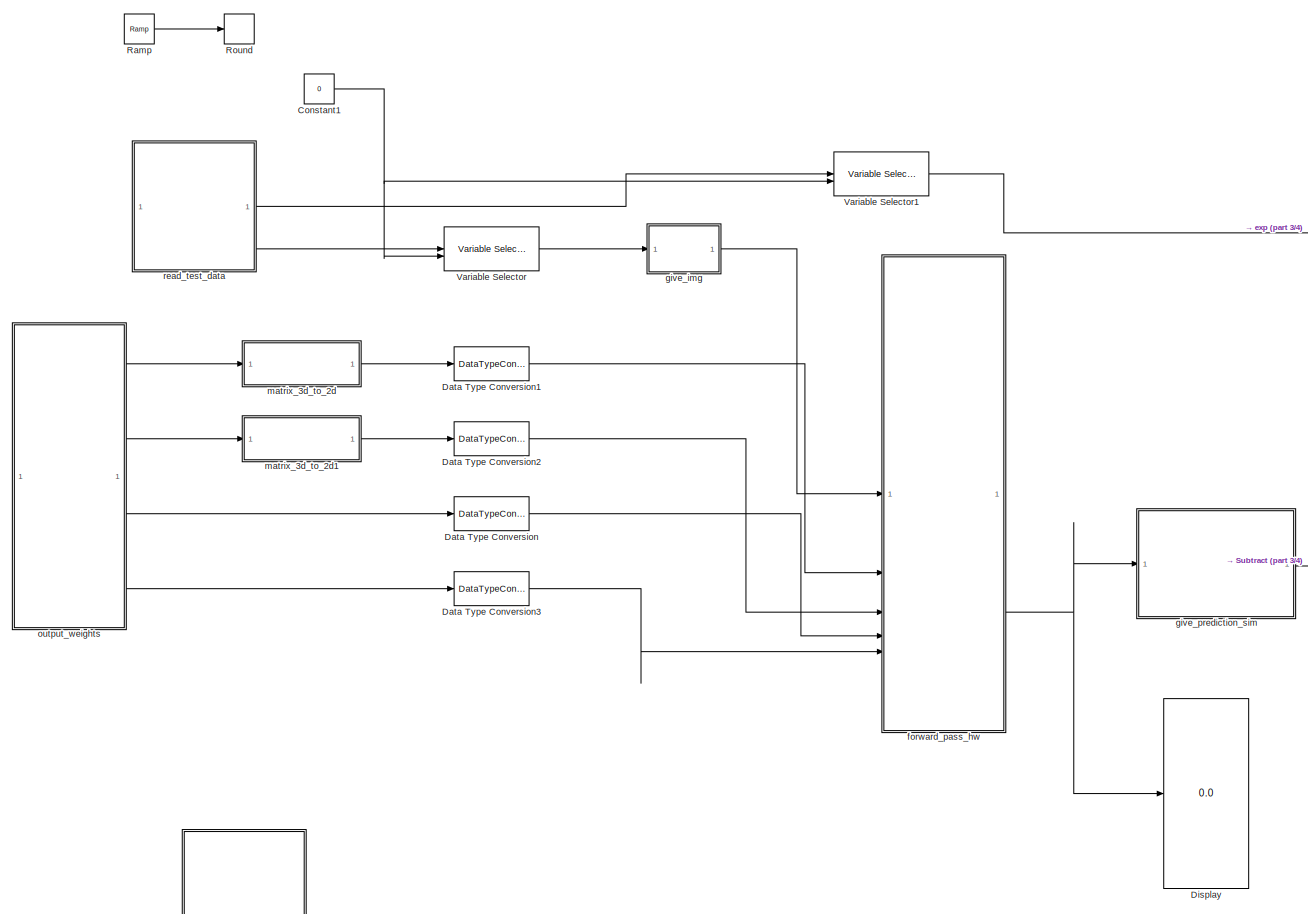
[diagram: root canvas - part 1/4, full width, middle band]
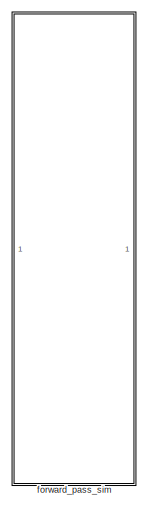
[diagram: root canvas - part 2/4, middle left region]
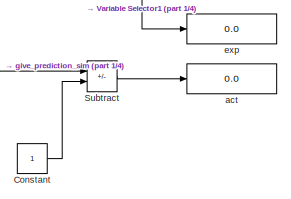
[diagram: root canvas - part 3/4, middle right region]
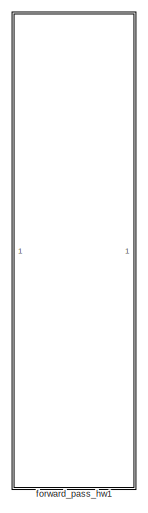
[diagram: root canvas - part 4/4, bottom left region]
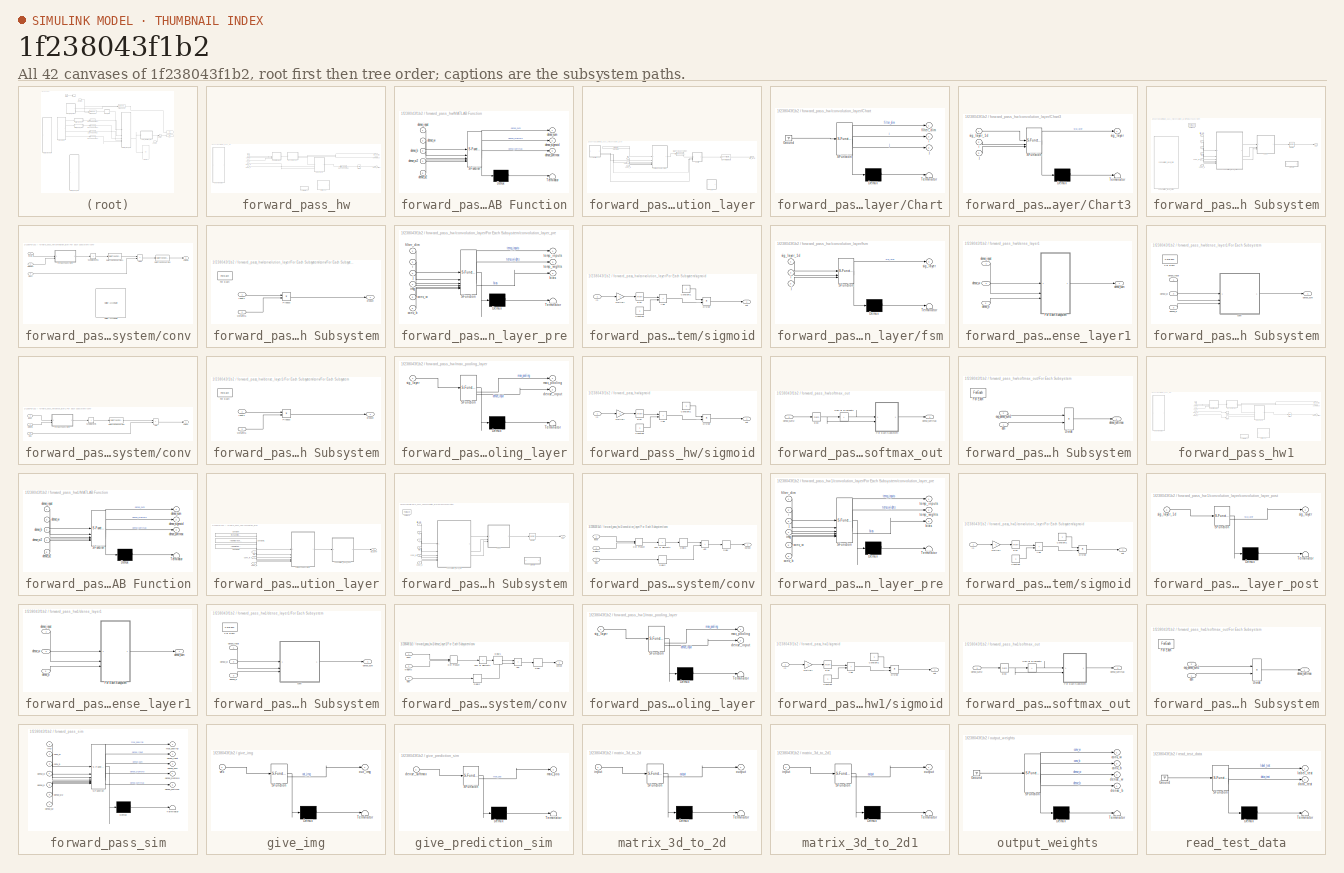
[diagram: thumbnail index - all 42 canvases of the model, root first then tree order]
MODEL slx_1f238043f1b2
KIND model
CONFIG AbsTol = auto
CONFIG EnableMultiTasking = off
CONFIG FixedStep = 0.001
CONFIG MaxStep = auto
CONFIG MinStep = auto
CONFIG RelTol = 1e-3
CONFIG SampleTimeConstraint = Unconstrained
CONFIG SolverName = FixedStepDiscrete
CONFIG StartTime = 0.0
CONFIG StopTime = 1
BLOCK [Constant] Constant
  OutDataTypeStr = single
BLOCK [Constant] Constant1
  Value = 0
BLOCK [DataTypeConversion] Data Type Conversion
  OutDataTypeStr = fixdt(1,32,8)
  RndMeth = Floor
  SaturateOnIntegerOverflow = off
BLOCK [DataTypeConversion] Data Type Conversion1
  OutDataTypeStr = fixdt(1,32,8)
  RndMeth = Floor
  SaturateOnIntegerOverflow = off
BLOCK [DataTypeConversion] Data Type Conversion2
  OutDataTypeStr = fixdt(1,32,8)
  RndMeth = Floor
  SaturateOnIntegerOverflow = off
BLOCK [DataTypeConversion] Data Type Conversion3
  OutDataTypeStr = fixdt(1,32,8)
  RndMeth = Floor
  SaturateOnIntegerOverflow = off
BLOCK [Display] Display
BLOCK [Reference] Ramp  REF=simulink/Sources/Ramp
  SourceBlock = simulink/Sources/Ramp
  SourceType = Ramp
BLOCK [Rounding] Round
  Operator = round
BLOCK [Sum] Subtract
  IconShape = rectangular
  Inputs = +-
BLOCK [Reference] Variable Selector  REF=dspindex/Variable
Selector
  SourceBlock = dspindex/Variable\nSelector
  SourceType = Variable Selector
BLOCK [Reference] Variable Selector1  REF=dspindex/Variable
Selector
  SourceBlock = dspindex/Variable\nSelector
  SourceType = Variable Selector
BLOCK [Display] act
  Decimation = 1
BLOCK [Display] exp
  Decimation = 1
BLOCK [SubSystem] forward_pass_hw
BLOCK [DataTypeConversion] forward_pass_hw/Data Type Conversion
  OutDataTypeStr = single
  RndMeth = Floor
  SaturateOnIntegerOverflow = off
BLOCK [SubSystem] forward_pass_hw/MATLAB Function
  Commented = on
  ErrorFcn = Stateflow.Translate.translate
  LibrarySourceBlock = simulink/User-Defined\nFunctions/MATLAB Function
  PermitHierarchicalResolution = ExplicitOnly
  SFBlockType = MATLAB Function
  TreatAsAtomicUnit = on
BLOCK [Demux] forward_pass_hw/MATLAB Function/ Demux 
  Outputs = 1
BLOCK [S-Function] forward_pass_hw/MATLAB Function/ SFunction 
  EnableBusSupport = on
  FunctionName = sf_sfun
  PortCounts = [5 4]
  SFcnIsStateOwnerBlock = off
  SFunctionDeploymentMode = off
  Tag = Stateflow S-Function 7
BLOCK [Terminator] forward_pass_hw/MATLAB Function/ Terminator 
BLOCK [Inport] forward_pass_hw/MATLAB Function/dense_b
  Port = 3
BLOCK [Inport] forward_pass_hw/MATLAB Function/dense_b2
  Port = 5
BLOCK [Inport] forward_pass_hw/MATLAB Function/dense_input
BLOCK [Outport] forward_pass_hw/MATLAB Function/dense_sigmoid
  Port = 2
BLOCK [Outport] forward_pass_hw/MATLAB Function/dense_softmax
  Port = 3
BLOCK [Outport] forward_pass_hw/MATLAB Function/dense_sum
BLOCK [Inport] forward_pass_hw/MATLAB Function/dense_w
  Port = 2
BLOCK [Inport] forward_pass_hw/MATLAB Function/dense_w2
  Port = 4
BLOCK [Inport] forward_pass_hw/conv_b
  Port = 3
BLOCK [Inport] forward_pass_hw/conv_w
  Port = 2
BLOCK [SubSystem] forward_pass_hw/convolution_layer
BLOCK [SubSystem] forward_pass_hw/convolution_layer/Chart
  ErrorFcn = Stateflow.Translate.translate
  PermitHierarchicalResolution = ExplicitOnly
  SFBlockType = Chart
  TreatAsAtomicUnit = on
BLOCK [Demux] forward_pass_hw/convolution_layer/Chart/ Demux 
  Outputs = 1
BLOCK [Ground] forward_pass_hw/convolution_layer/Chart/ Ground 
BLOCK [S-Function] forward_pass_hw/convolution_layer/Chart/ SFunction 
  EnableBusSupport = on
  FunctionName = sf_sfun
  PortCounts = [1 4]
  SFcnIsStateOwnerBlock = off
  SFunctionDeploymentMode = off
  Tag = Stateflow S-Function 12
BLOCK [Terminator] forward_pass_hw/convolution_layer/Chart/ Terminator 
BLOCK [Outport] forward_pass_hw/convolution_layer/Chart/filter_dim
BLOCK [Outport] forward_pass_hw/convolution_layer/Chart/i
  Port = 2
BLOCK [Outport] forward_pass_hw/convolution_layer/Chart/j
  Port = 3
BLOCK [SubSystem] forward_pass_hw/convolution_layer/Chart3
  ErrorFcn = Stateflow.Translate.translate
  PermitHierarchicalResolution = ExplicitOnly
  SFBlockType = Chart
  TreatAsAtomicUnit = on
BLOCK [Demux] forward_pass_hw/convolution_layer/Chart3/ Demux 
  Outputs = 1
BLOCK [S-Function] forward_pass_hw/convolution_layer/Chart3/ SFunction 
  EnableBusSupport = on
  FunctionName = sf_sfun
  PortCounts = [3 2]
  SFcnIsStateOwnerBlock = off
  SFunctionDeploymentMode = off
  Tag = Stateflow S-Function 16
BLOCK [Terminator] forward_pass_hw/convolution_layer/Chart3/ Terminator 
BLOCK [Inport] forward_pass_hw/convolution_layer/Chart3/i
  Port = 2
BLOCK [Inport] forward_pass_hw/convolution_layer/Chart3/j
  Port = 3
BLOCK [Outport] forward_pass_hw/convolution_layer/Chart3/sig_layer
BLOCK [Inport] forward_pass_hw/convolution_layer/Chart3/sig_layer_1d
BLOCK [Constant] forward_pass_hw/convolution_layer/Constant
  SampleTime = -1
  Value = uint16([1:5])
BLOCK [Reference] forward_pass_hw/convolution_layer/Convert 1-D to 2-D  REF=dspsigattribs/Convert 1-D to 2-D
  LibrarySourceBlock = dsphdlsupportsigmgmt/Convert 1-D to 2-D
  SourceBlock = dspsigattribs/Convert 1-D to 2-D
  SourceType = Convert 1-D to 2-D
BLOCK [DataTypeConversion] forward_pass_hw/convolution_layer/Data Type Conversion
  OutDataTypeStr = fixdt(1,32,8)
  RndMeth = Floor
  SaturateOnIntegerOverflow = off
BLOCK [SubSystem] forward_pass_hw/convolution_layer/For Each Subsystem
  TreatAsAtomicUnit = on
BLOCK [ForEach] forward_pass_hw/convolution_layer/For Each Subsystem/For Each
  DisableCoverage = on
BLOCK [SubSystem] forward_pass_hw/convolution_layer/For Each Subsystem/conv
BLOCK [Sum] forward_pass_hw/convolution_layer/For Each Subsystem/conv/Add1
  IconShape = rectangular
BLOCK [DataTypeConversion] forward_pass_hw/convolution_layer/For Each Subsystem/conv/Data Type Conversion
  OutDataTypeStr = single
  RndMeth = Floor
  SaturateOnIntegerOverflow = off
BLOCK [DataTypeConversion] forward_pass_hw/convolution_layer/For Each Subsystem/conv/Data Type Conversion1
  OutDataTypeStr = fixdt(1,32,8)
  RndMeth = Floor
  SaturateOnIntegerOverflow = off
BLOCK [SubSystem] forward_pass_hw/convolution_layer/For Each Subsystem/conv/For Each Subsystem
  TreatAsAtomicUnit = on
BLOCK [ForEach] forward_pass_hw/convolution_layer/For Each Subsystem/conv/For Each Subsystem/For Each
  DisableCoverage = on
BLOCK [Product] forward_pass_hw/convolution_layer/For Each Subsystem/conv/For Each Subsystem/Product
BLOCK [Inport] forward_pass_hw/convolution_layer/For Each Subsystem/conv/For Each Subsystem/input1
  Partition = on
  PartitionDimension = 2
  PartitionOffset = 0
  PartitionWidth = 1
BLOCK [Outport] forward_pass_hw/convolution_layer/For Each Subsystem/conv/For Each Subsystem/product
  ConcatenationDimension = 1
BLOCK [Inport] forward_pass_hw/convolution_layer/For Each Subsystem/conv/For Each Subsystem/weights1
  Partition = on
  PartitionDimension = 2
  PartitionOffset = 0
  PartitionWidth = 1
  Port = 2
BLOCK [Reference] forward_pass_hw/convolution_layer/For Each Subsystem/conv/Multiply-Accumulate  REF=hdlsllib/HDL Operations/Multiply-Accumulate
  Commented = on
  SourceBlock = hdlsllib/HDL Operations/Multiply-Accumulate
  SourceType = Multiply-Accumulate
BLOCK [Sum] forward_pass_hw/convolution_layer/For Each Subsystem/conv/Sum of Elements1
  IconShape = rectangular
  Inputs = +
BLOCK [Inport] forward_pass_hw/convolution_layer/For Each Subsystem/conv/bias1
  Port = 3
BLOCK [Inport] forward_pass_hw/convolution_layer/For Each Subsystem/conv/input1
BLOCK [Outport] forward_pass_hw/convolution_layer/For Each Subsystem/conv/output1
BLOCK [Inport] forward_pass_hw/convolution_layer/For Each Subsystem/conv/weights1
  Port = 2
BLOCK [Inport] forward_pass_hw/convolution_layer/For Each Subsystem/conv_b
  Port = 6
BLOCK [Inport] forward_pass_hw/convolution_layer/For Each Subsystem/conv_w
  Port = 5
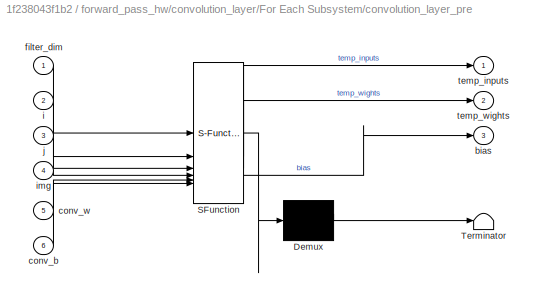
BLOCK [SubSystem] forward_pass_hw/convolution_layer/For Each Subsystem/convolution_layer_pre
  ErrorFcn = Stateflow.Translate.translate
  LibrarySourceBlock = simulink/User-Defined\nFunctions/MATLAB Function
  PermitHierarchicalResolution = ExplicitOnly
  SFBlockType = MATLAB Function
  TreatAsAtomicUnit = on
BLOCK [Demux] forward_pass_hw/convolution_layer/For Each Subsystem/convolution_layer_pre/ Demux 
  Outputs = 1
BLOCK [S-Function] forward_pass_hw/convolution_layer/For Each Subsystem/convolution_layer_pre/ SFunction 
  EnableBusSupport = on
  FunctionName = sf_sfun
  PortCounts = [6 4]
  SFcnIsStateOwnerBlock = off
  SFunctionDeploymentMode = off
  Tag = Stateflow S-Function 4
BLOCK [Terminator] forward_pass_hw/convolution_layer/For Each Subsystem/convolution_layer_pre/ Terminator 
BLOCK [Outport] forward_pass_hw/convolution_layer/For Each Subsystem/convolution_layer_pre/bias
  Port = 3
BLOCK [Inport] forward_pass_hw/convolution_layer/For Each Subsystem/convolution_layer_pre/conv_b
  Port = 6
BLOCK [Inport] forward_pass_hw/convolution_layer/For Each Subsystem/convolution_layer_pre/conv_w
  Port = 5
BLOCK [Inport] forward_pass_hw/convolution_layer/For Each Subsystem/convolution_layer_pre/filter_dim
BLOCK [Inport] forward_pass_hw/convolution_layer/For Each Subsystem/convolution_layer_pre/i
  Port = 2
BLOCK [Inport] forward_pass_hw/convolution_layer/For Each Subsystem/convolution_layer_pre/img
  Port = 4
BLOCK [Inport] forward_pass_hw/convolution_layer/For Each Subsystem/convolution_layer_pre/j
  Port = 3
BLOCK [Outport] forward_pass_hw/convolution_layer/For Each Subsystem/convolution_layer_pre/temp_inputs
BLOCK [Outport] forward_pass_hw/convolution_layer/For Each Subsystem/convolution_layer_pre/temp_wights
  Port = 2
BLOCK [Reference] forward_pass_hw/convolution_layer/For Each Subsystem/convolution_layer_pre1  REF=my_support_func/convolution_layer_pre
  Commented = on
  SourceBlock = my_support_func/convolution_layer_pre
  SourceType = CCaller
BLOCK [Inport] forward_pass_hw/convolution_layer/For Each Subsystem/filter_dim
  Partition = on
  PartitionDimension = 1
  PartitionOffset = 0
  PartitionWidth = 1
BLOCK [Inport] forward_pass_hw/convolution_layer/For Each Subsystem/i
  Port = 2
BLOCK [Inport] forward_pass_hw/convolution_layer/For Each Subsystem/img
  Port = 4
BLOCK [Inport] forward_pass_hw/convolution_layer/For Each Subsystem/j
  Port = 3
BLOCK [Reference] forward_pass_hw/convolution_layer/For Each Subsystem/logsig  REF=my_neural/Transfer Functions/logsig  (lib defined in slx_fb5f0e11bd5f)
  SourceBlock = my_neural/Transfer Functions/logsig
  SourceType = LOGSIG
BLOCK [Outport] forward_pass_hw/convolution_layer/For Each Subsystem/out
  ConcatenationDimension = 1
BLOCK [SubSystem] forward_pass_hw/convolution_layer/For Each Subsystem/sigmoid
  Commented = on
BLOCK [Sum] forward_pass_hw/convolution_layer/For Each Subsystem/sigmoid/Add
  IconShape = rectangular
BLOCK [Constant] forward_pass_hw/convolution_layer/For Each Subsystem/sigmoid/Constant
BLOCK [Constant] forward_pass_hw/convolution_layer/For Each Subsystem/sigmoid/Constant1
BLOCK [Product] forward_pass_hw/convolution_layer/For Each Subsystem/sigmoid/Divide
  Inputs = */
BLOCK [Math] forward_pass_hw/convolution_layer/For Each Subsystem/sigmoid/Exp
BLOCK [Gain] forward_pass_hw/convolution_layer/For Each Subsystem/sigmoid/Multiply
  Gain = -1
BLOCK [Inport] forward_pass_hw/convolution_layer/For Each Subsystem/sigmoid/in
BLOCK [Outport] forward_pass_hw/convolution_layer/For Each Subsystem/sigmoid/out
BLOCK [Inport] forward_pass_hw/convolution_layer/conv_b
  Port = 3
BLOCK [Inport] forward_pass_hw/convolution_layer/conv_w
  Port = 2
BLOCK [SubSystem] forward_pass_hw/convolution_layer/fsm
  Commented = on
  ErrorFcn = Stateflow.Translate.translate
  PermitHierarchicalResolution = ExplicitOnly
  SFBlockType = Chart
  TreatAsAtomicUnit = on
BLOCK [Demux] forward_pass_hw/convolution_layer/fsm/ Demux 
  Outputs = 1
BLOCK [S-Function] forward_pass_hw/convolution_layer/fsm/ SFunction 
  EnableBusSupport = on
  FunctionName = sf_sfun
  PortCounts = [3 2]
  SFcnIsStateOwnerBlock = off
  SFunctionDeploymentMode = off
  Tag = Stateflow S-Function 15
BLOCK [Terminator] forward_pass_hw/convolution_layer/fsm/ Terminator 
BLOCK [Inport] forward_pass_hw/convolution_layer/fsm/i
  Port = 2
BLOCK [Inport] forward_pass_hw/convolution_layer/fsm/j
  Port = 3
BLOCK [Outport] forward_pass_hw/convolution_layer/fsm/sig_layer
BLOCK [Inport] forward_pass_hw/convolution_layer/fsm/sig_layer_1d
BLOCK [Inport] forward_pass_hw/convolution_layer/img
BLOCK [Outport] forward_pass_hw/convolution_layer/sig_layer
BLOCK [Inport] forward_pass_hw/dense_b
  Port = 5
BLOCK [Outport] forward_pass_hw/dense_input
  Port = 2
BLOCK [SubSystem] forward_pass_hw/dense_layer1
BLOCK [SubSystem] forward_pass_hw/dense_layer1/For Each Subsystem
  TreatAsAtomicUnit = on
BLOCK [ForEach] forward_pass_hw/dense_layer1/For Each Subsystem/For Each
  DisableCoverage = on
BLOCK [SubSystem] forward_pass_hw/dense_layer1/For Each Subsystem/conv
BLOCK [Sum] forward_pass_hw/dense_layer1/For Each Subsystem/conv/Add
  IconShape = rectangular
  OutDataTypeStr = Inherit: Inherit via back propagation
BLOCK [DataTypeConversion] forward_pass_hw/dense_layer1/For Each Subsystem/conv/Data Type Conversion
  OutDataTypeStr = fixdt(1,32,8)
  RndMeth = Floor
  SaturateOnIntegerOverflow = off
BLOCK [SubSystem] forward_pass_hw/dense_layer1/For Each Subsystem/conv/For Each Subsystem
  TreatAsAtomicUnit = on
BLOCK [ForEach] forward_pass_hw/dense_layer1/For Each Subsystem/conv/For Each Subsystem/For Each
  DisableCoverage = on
BLOCK [Product] forward_pass_hw/dense_layer1/For Each Subsystem/conv/For Each Subsystem/Product
BLOCK [Inport] forward_pass_hw/dense_layer1/For Each Subsystem/conv/For Each Subsystem/input1
  Partition = on
  PartitionDimension = 2
  PartitionOffset = 0
  PartitionWidth = 1
BLOCK [Outport] forward_pass_hw/dense_layer1/For Each Subsystem/conv/For Each Subsystem/product
  ConcatenationDimension = 1
BLOCK [Inport] forward_pass_hw/dense_layer1/For Each Subsystem/conv/For Each Subsystem/weights1
  Partition = on
  PartitionDimension = 1
  PartitionOffset = 0
  PartitionWidth = 1
  Port = 2
BLOCK [Sum] forward_pass_hw/dense_layer1/For Each Subsystem/conv/Sum of Elements
  IconShape = rectangular
  Inputs = +
BLOCK [Inport] forward_pass_hw/dense_layer1/For Each Subsystem/conv/bias
  Port = 3
BLOCK [Inport] forward_pass_hw/dense_layer1/For Each Subsystem/conv/input
BLOCK [Outport] forward_pass_hw/dense_layer1/For Each Subsystem/conv/output
BLOCK [Inport] forward_pass_hw/dense_layer1/For Each Subsystem/conv/weights
  Port = 2
BLOCK [Inport] forward_pass_hw/dense_layer1/For Each Subsystem/dense_b
  Partition = on
  PartitionDimension = 2
  PartitionOffset = 0
  PartitionWidth = 1
  Port = 3
BLOCK [Inport] forward_pass_hw/dense_layer1/For Each Subsystem/dense_input
BLOCK [Outport] forward_pass_hw/dense_layer1/For Each Subsystem/dense_sum
  ConcatenationDimension = 1
BLOCK [Inport] forward_pass_hw/dense_layer1/For Each Subsystem/dense_w
  Partition = on
  PartitionDimension = 2
  PartitionOffset = 0
  PartitionWidth = 1
  Port = 2
BLOCK [Inport] forward_pass_hw/dense_layer1/dense_b
  Port = 3
BLOCK [Inport] forward_pass_hw/dense_layer1/dense_input
BLOCK [Outport] forward_pass_hw/dense_layer1/dense_sum
BLOCK [Inport] forward_pass_hw/dense_layer1/dense_w
  Port = 2
BLOCK [Outport] forward_pass_hw/dense_softmax
  Port = 3
BLOCK [Inport] forward_pass_hw/dense_w
  Port = 4
BLOCK [Inport] forward_pass_hw/img
BLOCK [Outport] forward_pass_hw/max_pooling
BLOCK [SubSystem] forward_pass_hw/max_pooling_layer
  ErrorFcn = Stateflow.Translate.translate
  LibrarySourceBlock = simulink/User-Defined\nFunctions/MATLAB Function
  PermitHierarchicalResolution = ExplicitOnly
  SFBlockType = MATLAB Function
  TreatAsAtomicUnit = on
BLOCK [Demux] forward_pass_hw/max_pooling_layer/ Demux 
  Outputs = 1
BLOCK [S-Function] forward_pass_hw/max_pooling_layer/ SFunction 
  EnableBusSupport = on
  FunctionName = sf_sfun
  PortCounts = [1 3]
  SFcnIsStateOwnerBlock = off
  SFunctionDeploymentMode = off
  Tag = Stateflow S-Function 8
BLOCK [Terminator] forward_pass_hw/max_pooling_layer/ Terminator 
BLOCK [Outport] forward_pass_hw/max_pooling_layer/dense_input
  Port = 2
BLOCK [Outport] forward_pass_hw/max_pooling_layer/max_pooling
BLOCK [Inport] forward_pass_hw/max_pooling_layer/sig_layer
BLOCK [SubSystem] forward_pass_hw/sigmoid
  Commented = on
BLOCK [Sum] forward_pass_hw/sigmoid/Add
  IconShape = rectangular
BLOCK [Constant] forward_pass_hw/sigmoid/Constant
BLOCK [Constant] forward_pass_hw/sigmoid/Constant1
BLOCK [Product] forward_pass_hw/sigmoid/Divide
  Inputs = */
BLOCK [Math] forward_pass_hw/sigmoid/Exp
BLOCK [Gain] forward_pass_hw/sigmoid/Multiply
  Gain = -1
BLOCK [Inport] forward_pass_hw/sigmoid/in
BLOCK [Outport] forward_pass_hw/sigmoid/out
BLOCK [Reference] forward_pass_hw/softmax  REF=my_neural/Transfer Functions/softmax  (lib defined in slx_fb5f0e11bd5f)
  SourceBlock = my_neural/Transfer Functions/softmax
  SourceType = SOFTMAX
BLOCK [SubSystem] forward_pass_hw/softmax_out
  Commented = on
BLOCK [Math] forward_pass_hw/softmax_out/Exp
BLOCK [SubSystem] forward_pass_hw/softmax_out/For Each Subsystem
  TreatAsAtomicUnit = on
BLOCK [Product] forward_pass_hw/softmax_out/For Each Subsystem/Divide
  Inputs = */
BLOCK [ForEach] forward_pass_hw/softmax_out/For Each Subsystem/For Each
  DisableCoverage = on
BLOCK [Inport] forward_pass_hw/softmax_out/For Each Subsystem/den
BLOCK [Outport] forward_pass_hw/softmax_out/For Each Subsystem/dense_softmax
  ConcatenationDimension = 1
BLOCK [Inport] forward_pass_hw/softmax_out/For Each Subsystem/exp_dense_sum2
  Partition = on
  PartitionDimension = 1
  PartitionOffset = 0
  PartitionWidth = 1
  Port = 2
BLOCK [Sum] forward_pass_hw/softmax_out/Sum of Elements
  IconShape = rectangular
  Inputs = +
BLOCK [Outport] forward_pass_hw/softmax_out/dense_softmax
BLOCK [Inport] forward_pass_hw/softmax_out/dense_sum2
BLOCK [SubSystem] forward_pass_hw1
  Commented = on
BLOCK [Delay] forward_pass_hw1/Delay
  DelayLength = 22
  InputPortMap = u0
BLOCK [Delay] forward_pass_hw1/Delay1
  DelayLength = 22
  InputPortMap = u0
BLOCK [SubSystem] forward_pass_hw1/MATLAB Function
  Commented = on
  ErrorFcn = Stateflow.Translate.translate
  LibrarySourceBlock = simulink/User-Defined\nFunctions/MATLAB Function
  PermitHierarchicalResolution = ExplicitOnly
  SFBlockType = MATLAB Function
  TreatAsAtomicUnit = on
BLOCK [Demux] forward_pass_hw1/MATLAB Function/ Demux 
  Outputs = 1
BLOCK [S-Function] forward_pass_hw1/MATLAB Function/ SFunction 
  EnableBusSupport = on
  FunctionName = sf_sfun
  PortCounts = [5 4]
  SFcnIsStateOwnerBlock = off
  SFunctionDeploymentMode = off
  Tag = Stateflow S-Function 14
BLOCK [Terminator] forward_pass_hw1/MATLAB Function/ Terminator 
BLOCK [Inport] forward_pass_hw1/MATLAB Function/dense_b
  Port = 3
BLOCK [Inport] forward_pass_hw1/MATLAB Function/dense_b2
  Port = 5
BLOCK [Inport] forward_pass_hw1/MATLAB Function/dense_input
BLOCK [Outport] forward_pass_hw1/MATLAB Function/dense_sigmoid
  Port = 2
BLOCK [Outport] forward_pass_hw1/MATLAB Function/dense_softmax
  Port = 3
BLOCK [Outport] forward_pass_hw1/MATLAB Function/dense_sum
BLOCK [Inport] forward_pass_hw1/MATLAB Function/dense_w
  Port = 2
BLOCK [Inport] forward_pass_hw1/MATLAB Function/dense_w2
  Port = 4
BLOCK [Inport] forward_pass_hw1/conv_b
  Port = 3
BLOCK [Inport] forward_pass_hw1/conv_w
  Port = 2
BLOCK [SubSystem] forward_pass_hw1/convolution_layer
BLOCK [Constant] forward_pass_hw1/convolution_layer/Constant
  OutDataTypeStr = single
  SampleTime = -1
  Value = reshape(repmat([1:5],28*28,1), [1,5*28*28])
BLOCK [Constant] forward_pass_hw1/convolution_layer/Constant1
  OutDataTypeStr = single
  SampleTime = -1
  Value = repmat(reshape(repmat([1:28],28,1), [1,28*28]), 1,5)
BLOCK [Constant] forward_pass_hw1/convolution_layer/Constant2
  OutDataTypeStr = single
  SampleTime = -1
  Value = repmat([1:28],1,5*28)
BLOCK [SubSystem] forward_pass_hw1/convolution_layer/For Each Subsystem
  TreatAsAtomicUnit = on
BLOCK [ForEach] forward_pass_hw1/convolution_layer/For Each Subsystem/For Each
  DisableCoverage = on
BLOCK [SubSystem] forward_pass_hw1/convolution_layer/For Each Subsystem/conv
BLOCK [Sum] forward_pass_hw1/convolution_layer/For Each Subsystem/conv/Add
  IconShape = rectangular
BLOCK [Delay] forward_pass_hw1/convolution_layer/For Each Subsystem/conv/Delay
  DelayLength = 11
  InputPortMap = u0
BLOCK [Delay] forward_pass_hw1/convolution_layer/For Each Subsystem/conv/Delay1
  DelayLength = 11
  InputPortMap = u0
BLOCK [Delay] forward_pass_hw1/convolution_layer/For Each Subsystem/conv/Delay2
  DelayLength = 11
  InputPortMap = u0
BLOCK [DotProduct] forward_pass_hw1/convolution_layer/For Each Subsystem/conv/Dot Product
  OutDataTypeStr = Inherit: Inherit via internal rule
BLOCK [Sum] forward_pass_hw1/convolution_layer/For Each Subsystem/conv/Sum of Elements
  IconShape = rectangular
  Inputs = +
BLOCK [Inport] forward_pass_hw1/convolution_layer/For Each Subsystem/conv/bias
  Port = 3
BLOCK [Inport] forward_pass_hw1/convolution_layer/For Each Subsystem/conv/input
BLOCK [Outport] forward_pass_hw1/convolution_layer/For Each Subsystem/conv/output
BLOCK [Inport] forward_pass_hw1/convolution_layer/For Each Subsystem/conv/weights
  Port = 2
BLOCK [Inport] forward_pass_hw1/convolution_layer/For Each Subsystem/conv_b
  Port = 6
BLOCK [Inport] forward_pass_hw1/convolution_layer/For Each Subsystem/conv_w
  Port = 5
BLOCK [SubSystem] forward_pass_hw1/convolution_layer/For Each Subsystem/convolution_layer_pre
  ErrorFcn = Stateflow.Translate.translate
  LibrarySourceBlock = simulink/User-Defined\nFunctions/MATLAB Function
  PermitHierarchicalResolution = ExplicitOnly
  SFBlockType = MATLAB Function
  TreatAsAtomicUnit = on
BLOCK [Demux] forward_pass_hw1/convolution_layer/For Each Subsystem/convolution_layer_pre/ Demux 
  Outputs = 1
BLOCK [S-Function] forward_pass_hw1/convolution_layer/For Each Subsystem/convolution_layer_pre/ SFunction 
  EnableBusSupport = on
  FunctionName = sf_sfun
  PortCounts = [6 4]
  SFcnIsStateOwnerBlock = off
  SFunctionDeploymentMode = off
  Tag = Stateflow S-Function 17
BLOCK [Terminator] forward_pass_hw1/convolution_layer/For Each Subsystem/convolution_layer_pre/ Terminator 
BLOCK [Outport] forward_pass_hw1/convolution_layer/For Each Subsystem/convolution_layer_pre/bias
  Port = 3
BLOCK [Inport] forward_pass_hw1/convolution_layer/For Each Subsystem/convolution_layer_pre/conv_b
  Port = 6
BLOCK [Inport] forward_pass_hw1/convolution_layer/For Each Subsystem/convolution_layer_pre/conv_w
  Port = 5
BLOCK [Inport] forward_pass_hw1/convolution_layer/For Each Subsystem/convolution_layer_pre/filter_dim
BLOCK [Inport] forward_pass_hw1/convolution_layer/For Each Subsystem/convolution_layer_pre/i
  Port = 2
BLOCK [Inport] forward_pass_hw1/convolution_layer/For Each Subsystem/convolution_layer_pre/img
  Port = 4
BLOCK [Inport] forward_pass_hw1/convolution_layer/For Each Subsystem/convolution_layer_pre/j
  Port = 3
BLOCK [Outport] forward_pass_hw1/convolution_layer/For Each Subsystem/convolution_layer_pre/temp_inputs
BLOCK [Outport] forward_pass_hw1/convolution_layer/For Each Subsystem/convolution_layer_pre/temp_wights
  Port = 2
BLOCK [Inport] forward_pass_hw1/convolution_layer/For Each Subsystem/filter_dim
  Partition = on
  PartitionDimension = 1
  PartitionOffset = 0
  PartitionWidth = 1
BLOCK [Inport] forward_pass_hw1/convolution_layer/For Each Subsystem/i
  Partition = on
  PartitionDimension = 1
  PartitionOffset = 0
  PartitionWidth = 1
  Port = 2
BLOCK [Inport] forward_pass_hw1/convolution_layer/For Each Subsystem/img
  Port = 4
BLOCK [Inport] forward_pass_hw1/convolution_layer/For Each Subsystem/j
  Partition = on
  PartitionDimension = 1
  PartitionOffset = 0
  PartitionWidth = 1
  Port = 3
BLOCK [Reference] forward_pass_hw1/convolution_layer/For Each Subsystem/logsig  REF=neural/Transfer Functions/logsig
  SourceBlock = neural/Transfer Functions/logsig
  SourceType = LOGSIG
BLOCK [Outport] forward_pass_hw1/convolution_layer/For Each Subsystem/out
  ConcatenationDimension = 1
BLOCK [SubSystem] forward_pass_hw1/convolution_layer/For Each Subsystem/sigmoid
  Commented = on
BLOCK [Sum] forward_pass_hw1/convolution_layer/For Each Subsystem/sigmoid/Add
  IconShape = rectangular
BLOCK [Constant] forward_pass_hw1/convolution_layer/For Each Subsystem/sigmoid/Constant
BLOCK [Constant] forward_pass_hw1/convolution_layer/For Each Subsystem/sigmoid/Constant1
BLOCK [Product] forward_pass_hw1/convolution_layer/For Each Subsystem/sigmoid/Divide
  Inputs = */
BLOCK [Math] forward_pass_hw1/convolution_layer/For Each Subsystem/sigmoid/Exp
BLOCK [Gain] forward_pass_hw1/convolution_layer/For Each Subsystem/sigmoid/Multiply
  Gain = -1
BLOCK [Inport] forward_pass_hw1/convolution_layer/For Each Subsystem/sigmoid/in
BLOCK [Outport] forward_pass_hw1/convolution_layer/For Each Subsystem/sigmoid/out
BLOCK [Inport] forward_pass_hw1/convolution_layer/conv_b
  Port = 3
BLOCK [Inport] forward_pass_hw1/convolution_layer/conv_w
  Port = 2
BLOCK [SubSystem] forward_pass_hw1/convolution_layer/convolution_layer_post
  ErrorFcn = Stateflow.Translate.translate
  LibrarySourceBlock = simulink/User-Defined\nFunctions/MATLAB Function
  PermitHierarchicalResolution = ExplicitOnly
  SFBlockType = MATLAB Function
  TreatAsAtomicUnit = on
BLOCK [Demux] forward_pass_hw1/convolution_layer/convolution_layer_post/ Demux 
  Outputs = 1
BLOCK [S-Function] forward_pass_hw1/convolution_layer/convolution_layer_post/ SFunction 
  EnableBusSupport = on
  FunctionName = sf_sfun
  PortCounts = [1 2]
  SFcnIsStateOwnerBlock = off
  SFunctionDeploymentMode = off
  Tag = Stateflow S-Function 18
BLOCK [Terminator] forward_pass_hw1/convolution_layer/convolution_layer_post/ Terminator 
BLOCK [Outport] forward_pass_hw1/convolution_layer/convolution_layer_post/sig_layer
BLOCK [Inport] forward_pass_hw1/convolution_layer/convolution_layer_post/sig_layer_1d
BLOCK [Inport] forward_pass_hw1/convolution_layer/img
BLOCK [Outport] forward_pass_hw1/convolution_layer/sig_layer
BLOCK [Inport] forward_pass_hw1/dense_b
  Port = 5
BLOCK [Outport] forward_pass_hw1/dense_input
  Port = 2
BLOCK [SubSystem] forward_pass_hw1/dense_layer1
BLOCK [SubSystem] forward_pass_hw1/dense_layer1/For Each Subsystem
  TreatAsAtomicUnit = on
BLOCK [ForEach] forward_pass_hw1/dense_layer1/For Each Subsystem/For Each
  DisableCoverage = on
BLOCK [SubSystem] forward_pass_hw1/dense_layer1/For Each Subsystem/conv
BLOCK [Sum] forward_pass_hw1/dense_layer1/For Each Subsystem/conv/Add
  IconShape = rectangular
  OutDataTypeStr = single
BLOCK [Delay] forward_pass_hw1/dense_layer1/For Each Subsystem/conv/Delay
  DelayLength = 11
  InputPortMap = u0
BLOCK [Delay] forward_pass_hw1/dense_layer1/For Each Subsystem/conv/Delay1
  DelayLength = 11
  InputPortMap = u0
BLOCK [Delay] forward_pass_hw1/dense_layer1/For Each Subsystem/conv/Delay2
  DelayLength = 11
  InputPortMap = u0
BLOCK [DotProduct] forward_pass_hw1/dense_layer1/For Each Subsystem/conv/Dot Product
  OutDataTypeStr = Inherit: Inherit via internal rule
BLOCK [Sum] forward_pass_hw1/dense_layer1/For Each Subsystem/conv/Sum of Elements
  IconShape = rectangular
  Inputs = +
BLOCK [Inport] forward_pass_hw1/dense_layer1/For Each Subsystem/conv/bias
  Port = 3
BLOCK [Inport] forward_pass_hw1/dense_layer1/For Each Subsystem/conv/input
BLOCK [Outport] forward_pass_hw1/dense_layer1/For Each Subsystem/conv/output
BLOCK [Inport] forward_pass_hw1/dense_layer1/For Each Subsystem/conv/weights
  Port = 2
BLOCK [Inport] forward_pass_hw1/dense_layer1/For Each Subsystem/dense_b
  Partition = on
  PartitionDimension = 2
  PartitionOffset = 0
  PartitionWidth = 1
  Port = 3
BLOCK [Inport] forward_pass_hw1/dense_layer1/For Each Subsystem/dense_input
BLOCK [Outport] forward_pass_hw1/dense_layer1/For Each Subsystem/dense_sum
  ConcatenationDimension = 1
BLOCK [Inport] forward_pass_hw1/dense_layer1/For Each Subsystem/dense_w
  Partition = on
  PartitionDimension = 2
  PartitionOffset = 0
  PartitionWidth = 1
  Port = 2
BLOCK [Inport] forward_pass_hw1/dense_layer1/dense_b
  Port = 3
BLOCK [Inport] forward_pass_hw1/dense_layer1/dense_input
BLOCK [Outport] forward_pass_hw1/dense_layer1/dense_sum
BLOCK [Inport] forward_pass_hw1/dense_layer1/dense_w
  Port = 2
BLOCK [Outport] forward_pass_hw1/dense_softmax
  Port = 3
BLOCK [Inport] forward_pass_hw1/dense_w
  Port = 4
BLOCK [Inport] forward_pass_hw1/img
BLOCK [Outport] forward_pass_hw1/max_pooling
BLOCK [SubSystem] forward_pass_hw1/max_pooling_layer
  ErrorFcn = Stateflow.Translate.translate
  LibrarySourceBlock = simulink/User-Defined\nFunctions/MATLAB Function
  PermitHierarchicalResolution = ExplicitOnly
  SFBlockType = MATLAB Function
  TreatAsAtomicUnit = on
BLOCK [Demux] forward_pass_hw1/max_pooling_layer/ Demux 
  Outputs = 1
BLOCK [S-Function] forward_pass_hw1/max_pooling_layer/ SFunction 
  EnableBusSupport = on
  FunctionName = sf_sfun
  PortCounts = [1 3]
  SFcnIsStateOwnerBlock = off
  SFunctionDeploymentMode = off
  Tag = Stateflow S-Function 19
BLOCK [Terminator] forward_pass_hw1/max_pooling_layer/ Terminator 
BLOCK [Outport] forward_pass_hw1/max_pooling_layer/dense_input
  Port = 2
BLOCK [Outport] forward_pass_hw1/max_pooling_layer/max_pooling
BLOCK [Inport] forward_pass_hw1/max_pooling_layer/sig_layer
BLOCK [SubSystem] forward_pass_hw1/sigmoid
  Commented = on
BLOCK [Sum] forward_pass_hw1/sigmoid/Add
  IconShape = rectangular
BLOCK [Constant] forward_pass_hw1/sigmoid/Constant
BLOCK [Constant] forward_pass_hw1/sigmoid/Constant1
BLOCK [Product] forward_pass_hw1/sigmoid/Divide
  Inputs = */
BLOCK [Math] forward_pass_hw1/sigmoid/Exp
BLOCK [Gain] forward_pass_hw1/sigmoid/Multiply
  Gain = -1
BLOCK [Inport] forward_pass_hw1/sigmoid/in
BLOCK [Outport] forward_pass_hw1/sigmoid/out
BLOCK [Reference] forward_pass_hw1/softmax  REF=neural/Transfer Functions/softmax
  SourceBlock = neural/Transfer Functions/softmax
  SourceType = SOFTMAX
BLOCK [SubSystem] forward_pass_hw1/softmax_out
  Commented = on
BLOCK [Math] forward_pass_hw1/softmax_out/Exp
BLOCK [SubSystem] forward_pass_hw1/softmax_out/For Each Subsystem
  TreatAsAtomicUnit = on
BLOCK [Product] forward_pass_hw1/softmax_out/For Each Subsystem/Divide
  Inputs = */
BLOCK [ForEach] forward_pass_hw1/softmax_out/For Each Subsystem/For Each
  DisableCoverage = on
BLOCK [Inport] forward_pass_hw1/softmax_out/For Each Subsystem/den
BLOCK [Outport] forward_pass_hw1/softmax_out/For Each Subsystem/dense_softmax
  ConcatenationDimension = 1
BLOCK [Inport] forward_pass_hw1/softmax_out/For Each Subsystem/exp_dense_sum2
  Partition = on
  PartitionDimension = 1
  PartitionOffset = 0
  PartitionWidth = 1
  Port = 2
BLOCK [Sum] forward_pass_hw1/softmax_out/Sum of Elements
  IconShape = rectangular
  Inputs = +
BLOCK [Outport] forward_pass_hw1/softmax_out/dense_softmax
BLOCK [Inport] forward_pass_hw1/softmax_out/dense_sum2
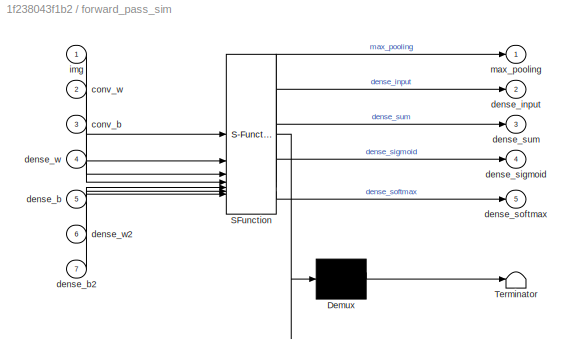
BLOCK [SubSystem] forward_pass_sim
  Commented = on
  ErrorFcn = Stateflow.Translate.translate
  LibrarySourceBlock = simulink/User-Defined\nFunctions/MATLAB Function
  PermitHierarchicalResolution = ExplicitOnly
  SFBlockType = MATLAB Function
  TreatAsAtomicUnit = on
BLOCK [Demux] forward_pass_sim/ Demux 
  Outputs = 1
BLOCK [S-Function] forward_pass_sim/ SFunction 
  EnableBusSupport = on
  FunctionName = sf_sfun
  PortCounts = [7 6]
  SFcnIsStateOwnerBlock = off
  SFunctionDeploymentMode = off
  Tag = Stateflow S-Function 6
BLOCK [Terminator] forward_pass_sim/ Terminator 
BLOCK [Inport] forward_pass_sim/conv_b
  Port = 3
BLOCK [Inport] forward_pass_sim/conv_w
  Port = 2
BLOCK [Inport] forward_pass_sim/dense_b
  Port = 5
BLOCK [Inport] forward_pass_sim/dense_b2
  Port = 7
BLOCK [Outport] forward_pass_sim/dense_input
  Port = 2
BLOCK [Outport] forward_pass_sim/dense_sigmoid
  Port = 4
BLOCK [Outport] forward_pass_sim/dense_softmax
  Port = 5
BLOCK [Outport] forward_pass_sim/dense_sum
  Port = 3
BLOCK [Inport] forward_pass_sim/dense_w
  Port = 4
BLOCK [Inport] forward_pass_sim/dense_w2
  Port = 6
BLOCK [Inport] forward_pass_sim/img
BLOCK [Outport] forward_pass_sim/max_pooling
BLOCK [SubSystem] give_img
  ErrorFcn = Stateflow.Translate.translate
  LibrarySourceBlock = simulink/User-Defined\nFunctions/MATLAB Function
  PermitHierarchicalResolution = ExplicitOnly
  SFBlockType = MATLAB Function
  TreatAsAtomicUnit = on
BLOCK [Demux] give_img/ Demux 
  Outputs = 1
BLOCK [S-Function] give_img/ SFunction 
  EnableBusSupport = on
  FunctionName = sf_sfun
  PortCounts = [1 2]
  SFcnIsStateOwnerBlock = off
  SFunctionDeploymentMode = off
  Tag = Stateflow S-Function 3
BLOCK [Terminator] give_img/ Terminator 
BLOCK [Outport] give_img/out_img
BLOCK [Inport] give_img/vec
BLOCK [SubSystem] give_prediction_sim
  ErrorFcn = Stateflow.Translate.translate
  LibrarySourceBlock = simulink/User-Defined\nFunctions/MATLAB Function
  PermitHierarchicalResolution = ExplicitOnly
  SFBlockType = MATLAB Function
  TreatAsAtomicUnit = on
BLOCK [Demux] give_prediction_sim/ Demux 
  Outputs = 1
BLOCK [S-Function] give_prediction_sim/ SFunction 
  EnableBusSupport = on
  FunctionName = sf_sfun
  PortCounts = [1 2]
  SFcnIsStateOwnerBlock = off
  SFunctionDeploymentMode = off
  Tag = Stateflow S-Function 9
BLOCK [Terminator] give_prediction_sim/ Terminator 
BLOCK [Inport] give_prediction_sim/dense_softmax
BLOCK [Outport] give_prediction_sim/max_pos
BLOCK [SubSystem] matrix_3d_to_2d
  ErrorFcn = Stateflow.Translate.translate
  LibrarySourceBlock = simulink/User-Defined\nFunctions/MATLAB Function
  PermitHierarchicalResolution = ExplicitOnly
  SFBlockType = MATLAB Function
  TreatAsAtomicUnit = on
BLOCK [Demux] matrix_3d_to_2d/ Demux 
  Outputs = 1
BLOCK [S-Function] matrix_3d_to_2d/ SFunction 
  EnableBusSupport = on
  FunctionName = sf_sfun
  PortCounts = [1 2]
  SFcnIsStateOwnerBlock = off
  SFunctionDeploymentMode = off
  Tag = Stateflow S-Function 10
BLOCK [Terminator] matrix_3d_to_2d/ Terminator 
BLOCK [Inport] matrix_3d_to_2d/input
BLOCK [Outport] matrix_3d_to_2d/output
BLOCK [SubSystem] matrix_3d_to_2d1
  ErrorFcn = Stateflow.Translate.translate
  LibrarySourceBlock = simulink/User-Defined\nFunctions/MATLAB Function
  PermitHierarchicalResolution = ExplicitOnly
  SFBlockType = MATLAB Function
  TreatAsAtomicUnit = on
BLOCK [Demux] matrix_3d_to_2d1/ Demux 
  Outputs = 1
BLOCK [S-Function] matrix_3d_to_2d1/ SFunction 
  EnableBusSupport = on
  FunctionName = sf_sfun
  PortCounts = [1 2]
  SFcnIsStateOwnerBlock = off
  SFunctionDeploymentMode = off
  Tag = Stateflow S-Function 11
BLOCK [Terminator] matrix_3d_to_2d1/ Terminator 
BLOCK [Inport] matrix_3d_to_2d1/input
BLOCK [Outport] matrix_3d_to_2d1/output
BLOCK [SubSystem] output_weights
  ErrorFcn = Stateflow.Translate.translate
  LibrarySourceBlock = simulink/User-Defined\nFunctions/MATLAB Function
  PermitHierarchicalResolution = ExplicitOnly
  SFBlockType = MATLAB Function
  TreatAsAtomicUnit = on
BLOCK [Demux] output_weights/ Demux 
  Outputs = 1
BLOCK [Ground] output_weights/ Ground 
BLOCK [S-Function] output_weights/ SFunction 
  EnableBusSupport = on
  FunctionName = sf_sfun
  PortCounts = [1 5]
  SFcnIsStateOwnerBlock = off
  SFunctionDeploymentMode = off
  Tag = Stateflow S-Function 2
BLOCK [Terminator] output_weights/ Terminator 
BLOCK [Outport] output_weights/conv_b
  Port = 2
BLOCK [Outport] output_weights/conv_w
BLOCK [Outport] output_weights/dense_b
  Port = 4
BLOCK [Outport] output_weights/dense_w
  Port = 3
BLOCK [SubSystem] read_test_data
  ErrorFcn = Stateflow.Translate.translate
  LibrarySourceBlock = simulink/User-Defined\nFunctions/MATLAB Function
  PermitHierarchicalResolution = ExplicitOnly
  SFBlockType = MATLAB Function
  TreatAsAtomicUnit = on
BLOCK [Demux] read_test_data/ Demux 
  Outputs = 1
BLOCK [Ground] read_test_data/ Ground 
BLOCK [S-Function] read_test_data/ SFunction 
  EnableBusSupport = on
  FunctionName = sf_sfun
  PortCounts = [1 3]
  SFcnIsStateOwnerBlock = off
  SFunctionDeploymentMode = off
  Tag = Stateflow S-Function 1
BLOCK [Terminator] read_test_data/ Terminator 
BLOCK [Outport] read_test_data/data_test
  Port = 2
BLOCK [Outport] read_test_data/label_test
NET Constant1:1 -> Variable Selector1:2, Variable Selector:2
LINE Constant:1 -> Subtract:2
LINE Data Type Conversion1:1 -> forward_pass_hw:2
LINE Data Type Conversion2:1 -> forward_pass_hw:3
LINE Data Type Conversion3:1 -> forward_pass_hw:5
LINE Data Type Conversion:1 -> forward_pass_hw:4
LINE Ramp:1 -> Round:1
LINE Subtract:1 -> act:1
LINE Variable Selector1:1 -> exp:1
LINE Variable Selector:1 -> give_img:1
LINE forward_pass_hw/Data Type Conversion:1 -> forward_pass_hw/softmax:1
LINE forward_pass_hw/conv_b:1 -> forward_pass_hw/convolution_layer:3
LINE forward_pass_hw/conv_w:1 -> forward_pass_hw/convolution_layer:2
LINE forward_pass_hw/convolution_layer/Chart3:1 -> forward_pass_hw/convolution_layer/Convert 1-D to 2-D:1
NET forward_pass_hw/convolution_layer/Chart:2 -> forward_pass_hw/convolution_layer/Chart3:2, forward_pass_hw/convolution_layer/For Each Subsystem:2
NET forward_pass_hw/convolution_layer/Chart:3 -> forward_pass_hw/convolution_layer/Chart3:3, forward_pass_hw/convolution_layer/For Each Subsystem:3
LINE forward_pass_hw/convolution_layer/Constant:1 -> forward_pass_hw/convolution_layer/For Each Subsystem:1
LINE forward_pass_hw/convolution_layer/Convert 1-D to 2-D:1 -> forward_pass_hw/convolution_layer/sig_layer:1
LINE forward_pass_hw/convolution_layer/Data Type Conversion:1 -> forward_pass_hw/convolution_layer/Chart3:1
LINE forward_pass_hw/convolution_layer/For Each Subsystem/conv/Add1:1 -> forward_pass_hw/convolution_layer/For Each Subsystem/conv/Data Type Conversion:1
LINE forward_pass_hw/convolution_layer/For Each Subsystem/conv/Data Type Conversion1:1 -> forward_pass_hw/convolution_layer/For Each Subsystem/conv/Add1:1
LINE forward_pass_hw/convolution_layer/For Each Subsystem/conv/Data Type Conversion:1 -> forward_pass_hw/convolution_layer/For Each Subsystem/conv/output1:1
LINE forward_pass_hw/convolution_layer/For Each Subsystem/conv/For Each Subsystem/Product:1 -> forward_pass_hw/convolution_layer/For Each Subsystem/conv/For Each Subsystem/product:1
LINE forward_pass_hw/convolution_layer/For Each Subsystem/conv/For Each Subsystem/input1:1 -> forward_pass_hw/convolution_layer/For Each Subsystem/conv/For Each Subsystem/Product:1
LINE forward_pass_hw/convolution_layer/For Each Subsystem/conv/For Each Subsystem/weights1:1 -> forward_pass_hw/convolution_layer/For Each Subsystem/conv/For Each Subsystem/Product:2
LINE forward_pass_hw/convolution_layer/For Each Subsystem/conv/For Each Subsystem:1 -> forward_pass_hw/convolution_layer/For Each Subsystem/conv/Sum of Elements1:1
LINE forward_pass_hw/convolution_layer/For Each Subsystem/conv/Sum of Elements1:1 -> forward_pass_hw/convolution_layer/For Each Subsystem/conv/Data Type Conversion1:1
LINE forward_pass_hw/convolution_layer/For Each Subsystem/conv/bias1:1 -> forward_pass_hw/convolution_layer/For Each Subsystem/conv/Add1:2
LINE forward_pass_hw/convolution_layer/For Each Subsystem/conv/input1:1 -> forward_pass_hw/convolution_layer/For Each Subsystem/conv/For Each Subsystem:1
LINE forward_pass_hw/convolution_layer/For Each Subsystem/conv/weights1:1 -> forward_pass_hw/convolution_layer/For Each Subsystem/conv/For Each Subsystem:2
LINE forward_pass_hw/convolution_layer/For Each Subsystem/conv:1 -> forward_pass_hw/convolution_layer/For Each Subsystem/logsig:1
LINE forward_pass_hw/convolution_layer/For Each Subsystem/conv_b:1 -> forward_pass_hw/convolution_layer/For Each Subsystem/convolution_layer_pre:6
LINE forward_pass_hw/convolution_layer/For Each Subsystem/conv_w:1 -> forward_pass_hw/convolution_layer/For Each Subsystem/convolution_layer_pre:5
LINE forward_pass_hw/convolution_layer/For Each Subsystem/convolution_layer_pre:1 -> forward_pass_hw/convolution_layer/For Each Subsystem/conv:1
LINE forward_pass_hw/convolution_layer/For Each Subsystem/convolution_layer_pre:2 -> forward_pass_hw/convolution_layer/For Each Subsystem/conv:2
LINE forward_pass_hw/convolution_layer/For Each Subsystem/convolution_layer_pre:3 -> forward_pass_hw/convolution_layer/For Each Subsystem/conv:3
LINE forward_pass_hw/convolution_layer/For Each Subsystem/filter_dim:1 -> forward_pass_hw/convolution_layer/For Each Subsystem/convolution_layer_pre:1
LINE forward_pass_hw/convolution_layer/For Each Subsystem/i:1 -> forward_pass_hw/convolution_layer/For Each Subsystem/convolution_layer_pre:2
LINE forward_pass_hw/convolution_layer/For Each Subsystem/img:1 -> forward_pass_hw/convolution_layer/For Each Subsystem/convolution_layer_pre:4
LINE forward_pass_hw/convolution_layer/For Each Subsystem/j:1 -> forward_pass_hw/convolution_layer/For Each Subsystem/convolution_layer_pre:3
LINE forward_pass_hw/convolution_layer/For Each Subsystem/logsig:1 -> forward_pass_hw/convolution_layer/For Each Subsystem/out:1
LINE forward_pass_hw/convolution_layer/For Each Subsystem/sigmoid/Add:1 -> forward_pass_hw/convolution_layer/For Each Subsystem/sigmoid/Divide:2
LINE forward_pass_hw/convolution_layer/For Each Subsystem/sigmoid/Constant1:1 -> forward_pass_hw/convolution_layer/For Each Subsystem/sigmoid/Divide:1
LINE forward_pass_hw/convolution_layer/For Each Subsystem/sigmoid/Constant:1 -> forward_pass_hw/convolution_layer/For Each Subsystem/sigmoid/Add:2
LINE forward_pass_hw/convolution_layer/For Each Subsystem/sigmoid/Divide:1 -> forward_pass_hw/convolution_layer/For Each Subsystem/sigmoid/out:1
LINE forward_pass_hw/convolution_layer/For Each Subsystem/sigmoid/Exp:1 -> forward_pass_hw/convolution_layer/For Each Subsystem/sigmoid/Add:1
LINE forward_pass_hw/convolution_layer/For Each Subsystem/sigmoid/Multiply:1 -> forward_pass_hw/convolution_layer/For Each Subsystem/sigmoid/Exp:1
LINE forward_pass_hw/convolution_layer/For Each Subsystem/sigmoid/in:1 -> forward_pass_hw/convolution_layer/For Each Subsystem/sigmoid/Multiply:1
LINE forward_pass_hw/convolution_layer/For Each Subsystem:1 -> forward_pass_hw/convolution_layer/Data Type Conversion:1
LINE forward_pass_hw/convolution_layer/conv_b:1 -> forward_pass_hw/convolution_layer/For Each Subsystem:6
LINE forward_pass_hw/convolution_layer/conv_w:1 -> forward_pass_hw/convolution_layer/For Each Subsystem:5
LINE forward_pass_hw/convolution_layer/img:1 -> forward_pass_hw/convolution_layer/For Each Subsystem:4
LINE forward_pass_hw/convolution_layer:1 -> forward_pass_hw/max_pooling_layer:1
LINE forward_pass_hw/dense_b:1 -> forward_pass_hw/dense_layer1:3
LINE forward_pass_hw/dense_layer1/For Each Subsystem/conv/Add:1 -> forward_pass_hw/dense_layer1/For Each Subsystem/conv/output:1
LINE forward_pass_hw/dense_layer1/For Each Subsystem/conv/Data Type Conversion:1 -> forward_pass_hw/dense_layer1/For Each Subsystem/conv/Add:1
LINE forward_pass_hw/dense_layer1/For Each Subsystem/conv/For Each Subsystem/Product:1 -> forward_pass_hw/dense_layer1/For Each Subsystem/conv/For Each Subsystem/product:1
LINE forward_pass_hw/dense_layer1/For Each Subsystem/conv/For Each Subsystem/input1:1 -> forward_pass_hw/dense_layer1/For Each Subsystem/conv/For Each Subsystem/Product:1
LINE forward_pass_hw/dense_layer1/For Each Subsystem/conv/For Each Subsystem/weights1:1 -> forward_pass_hw/dense_layer1/For Each Subsystem/conv/For Each Subsystem/Product:2
LINE forward_pass_hw/dense_layer1/For Each Subsystem/conv/For Each Subsystem:1 -> forward_pass_hw/dense_layer1/For Each Subsystem/conv/Sum of Elements:1
LINE forward_pass_hw/dense_layer1/For Each Subsystem/conv/Sum of Elements:1 -> forward_pass_hw/dense_layer1/For Each Subsystem/conv/Data Type Conversion:1
LINE forward_pass_hw/dense_layer1/For Each Subsystem/conv/bias:1 -> forward_pass_hw/dense_layer1/For Each Subsystem/conv/Add:2
LINE forward_pass_hw/dense_layer1/For Each Subsystem/conv/input:1 -> forward_pass_hw/dense_layer1/For Each Subsystem/conv/For Each Subsystem:1
LINE forward_pass_hw/dense_layer1/For Each Subsystem/conv/weights:1 -> forward_pass_hw/dense_layer1/For Each Subsystem/conv/For Each Subsystem:2
LINE forward_pass_hw/dense_layer1/For Each Subsystem/conv:1 -> forward_pass_hw/dense_layer1/For Each Subsystem/dense_sum:1
LINE forward_pass_hw/dense_layer1/For Each Subsystem/dense_b:1 -> forward_pass_hw/dense_layer1/For Each Subsystem/conv:3
LINE forward_pass_hw/dense_layer1/For Each Subsystem/dense_input:1 -> forward_pass_hw/dense_layer1/For Each Subsystem/conv:1
LINE forward_pass_hw/dense_layer1/For Each Subsystem/dense_w:1 -> forward_pass_hw/dense_layer1/For Each Subsystem/conv:2
LINE forward_pass_hw/dense_layer1/For Each Subsystem:1 -> forward_pass_hw/dense_layer1/dense_sum:1
LINE forward_pass_hw/dense_layer1/dense_b:1 -> forward_pass_hw/dense_layer1/For Each Subsystem:3
LINE forward_pass_hw/dense_layer1/dense_input:1 -> forward_pass_hw/dense_layer1/For Each Subsystem:1
LINE forward_pass_hw/dense_layer1/dense_w:1 -> forward_pass_hw/dense_layer1/For Each Subsystem:2
LINE forward_pass_hw/dense_layer1:1 -> forward_pass_hw/Data Type Conversion:1
LINE forward_pass_hw/dense_w:1 -> forward_pass_hw/dense_layer1:2
LINE forward_pass_hw/img:1 -> forward_pass_hw/convolution_layer:1
LINE forward_pass_hw/max_pooling_layer:1 -> forward_pass_hw/max_pooling:1
NET forward_pass_hw/max_pooling_layer:2 -> forward_pass_hw/dense_input:1, forward_pass_hw/dense_layer1:1
LINE forward_pass_hw/sigmoid/Add:1 -> forward_pass_hw/sigmoid/Divide:2
LINE forward_pass_hw/sigmoid/Constant1:1 -> forward_pass_hw/sigmoid/Divide:1
LINE forward_pass_hw/sigmoid/Constant:1 -> forward_pass_hw/sigmoid/Add:2
LINE forward_pass_hw/sigmoid/Divide:1 -> forward_pass_hw/sigmoid/out:1
LINE forward_pass_hw/sigmoid/Exp:1 -> forward_pass_hw/sigmoid/Add:1
LINE forward_pass_hw/sigmoid/Multiply:1 -> forward_pass_hw/sigmoid/Exp:1
LINE forward_pass_hw/sigmoid/in:1 -> forward_pass_hw/sigmoid/Multiply:1
LINE forward_pass_hw/softmax:1 -> forward_pass_hw/dense_softmax:1
NET forward_pass_hw/softmax_out/Exp:1 -> forward_pass_hw/softmax_out/For Each Subsystem:2, forward_pass_hw/softmax_out/Sum of Elements:1
LINE forward_pass_hw/softmax_out/For Each Subsystem/Divide:1 -> forward_pass_hw/softmax_out/For Each Subsystem/dense_softmax:1
LINE forward_pass_hw/softmax_out/For Each Subsystem/den:1 -> forward_pass_hw/softmax_out/For Each Subsystem/Divide:2
LINE forward_pass_hw/softmax_out/For Each Subsystem/exp_dense_sum2:1 -> forward_pass_hw/softmax_out/For Each Subsystem/Divide:1
LINE forward_pass_hw/softmax_out/For Each Subsystem:1 -> forward_pass_hw/softmax_out/dense_softmax:1
LINE forward_pass_hw/softmax_out/Sum of Elements:1 -> forward_pass_hw/softmax_out/For Each Subsystem:1
LINE forward_pass_hw/softmax_out/dense_sum2:1 -> forward_pass_hw/softmax_out/Exp:1
LINE forward_pass_hw1/Delay1:1 -> forward_pass_hw1/dense_layer1:3
LINE forward_pass_hw1/Delay:1 -> forward_pass_hw1/dense_layer1:2
LINE forward_pass_hw1/conv_b:1 -> forward_pass_hw1/convolution_layer:3
LINE forward_pass_hw1/conv_w:1 -> forward_pass_hw1/convolution_layer:2
LINE forward_pass_hw1/convolution_layer/Constant1:1 -> forward_pass_hw1/convolution_layer/For Each Subsystem:2
LINE forward_pass_hw1/convolution_layer/Constant2:1 -> forward_pass_hw1/convolution_layer/For Each Subsystem:3
LINE forward_pass_hw1/convolution_layer/Constant:1 -> forward_pass_hw1/convolution_layer/For Each Subsystem:1
LINE forward_pass_hw1/convolution_layer/For Each Subsystem/conv/Add:1 -> forward_pass_hw1/convolution_layer/For Each Subsystem/conv/Delay:1
LINE forward_pass_hw1/convolution_layer/For Each Subsystem/conv/Delay1:1 -> forward_pass_hw1/convolution_layer/For Each Subsystem/conv/Add:1
LINE forward_pass_hw1/convolution_layer/For Each Subsystem/conv/Delay2:1 -> forward_pass_hw1/convolution_layer/For Each Subsystem/conv/Add:2
LINE forward_pass_hw1/convolution_layer/For Each Subsystem/conv/Delay:1 -> forward_pass_hw1/convolution_layer/For Each Subsystem/conv/output:1
LINE forward_pass_hw1/convolution_layer/For Each Subsystem/conv/Dot Product:1 -> forward_pass_hw1/convolution_layer/For Each Subsystem/conv/Sum of Elements:1
LINE forward_pass_hw1/convolution_layer/For Each Subsystem/conv/Sum of Elements:1 -> forward_pass_hw1/convolution_layer/For Each Subsystem/conv/Delay1:1
LINE forward_pass_hw1/convolution_layer/For Each Subsystem/conv/bias:1 -> forward_pass_hw1/convolution_layer/For Each Subsystem/conv/Delay2:1
LINE forward_pass_hw1/convolution_layer/For Each Subsystem/conv/input:1 -> forward_pass_hw1/convolution_layer/For Each Subsystem/conv/Dot Product:1
LINE forward_pass_hw1/convolution_layer/For Each Subsystem/conv/weights:1 -> forward_pass_hw1/convolution_layer/For Each Subsystem/conv/Dot Product:2
LINE forward_pass_hw1/convolution_layer/For Each Subsystem/conv:1 -> forward_pass_hw1/convolution_layer/For Each Subsystem/logsig:1
LINE forward_pass_hw1/convolution_layer/For Each Subsystem/conv_b:1 -> forward_pass_hw1/convolution_layer/For Each Subsystem/convolution_layer_pre:6
LINE forward_pass_hw1/convolution_layer/For Each Subsystem/conv_w:1 -> forward_pass_hw1/convolution_layer/For Each Subsystem/convolution_layer_pre:5
LINE forward_pass_hw1/convolution_layer/For Each Subsystem/convolution_layer_pre:1 -> forward_pass_hw1/convolution_layer/For Each Subsystem/conv:1
LINE forward_pass_hw1/convolution_layer/For Each Subsystem/convolution_layer_pre:2 -> forward_pass_hw1/convolution_layer/For Each Subsystem/conv:2
LINE forward_pass_hw1/convolution_layer/For Each Subsystem/convolution_layer_pre:3 -> forward_pass_hw1/convolution_layer/For Each Subsystem/conv:3
LINE forward_pass_hw1/convolution_layer/For Each Subsystem/filter_dim:1 -> forward_pass_hw1/convolution_layer/For Each Subsystem/convolution_layer_pre:1
LINE forward_pass_hw1/convolution_layer/For Each Subsystem/i:1 -> forward_pass_hw1/convolution_layer/For Each Subsystem/convolution_layer_pre:2
LINE forward_pass_hw1/convolution_layer/For Each Subsystem/img:1 -> forward_pass_hw1/convolution_layer/For Each Subsystem/convolution_layer_pre:4
LINE forward_pass_hw1/convolution_layer/For Each Subsystem/j:1 -> forward_pass_hw1/convolution_layer/For Each Subsystem/convolution_layer_pre:3
LINE forward_pass_hw1/convolution_layer/For Each Subsystem/logsig:1 -> forward_pass_hw1/convolution_layer/For Each Subsystem/out:1
LINE forward_pass_hw1/convolution_layer/For Each Subsystem/sigmoid/Add:1 -> forward_pass_hw1/convolution_layer/For Each Subsystem/sigmoid/Divide:2
LINE forward_pass_hw1/convolution_layer/For Each Subsystem/sigmoid/Constant1:1 -> forward_pass_hw1/convolution_layer/For Each Subsystem/sigmoid/Divide:1
LINE forward_pass_hw1/convolution_layer/For Each Subsystem/sigmoid/Constant:1 -> forward_pass_hw1/convolution_layer/For Each Subsystem/sigmoid/Add:2
LINE forward_pass_hw1/convolution_layer/For Each Subsystem/sigmoid/Divide:1 -> forward_pass_hw1/convolution_layer/For Each Subsystem/sigmoid/out:1
LINE forward_pass_hw1/convolution_layer/For Each Subsystem/sigmoid/Exp:1 -> forward_pass_hw1/convolution_layer/For Each Subsystem/sigmoid/Add:1
LINE forward_pass_hw1/convolution_layer/For Each Subsystem/sigmoid/Multiply:1 -> forward_pass_hw1/convolution_layer/For Each Subsystem/sigmoid/Exp:1
LINE forward_pass_hw1/convolution_layer/For Each Subsystem/sigmoid/in:1 -> forward_pass_hw1/convolution_layer/For Each Subsystem/sigmoid/Multiply:1
LINE forward_pass_hw1/convolution_layer/For Each Subsystem:1 -> forward_pass_hw1/convolution_layer/convolution_layer_post:1
LINE forward_pass_hw1/convolution_layer/conv_b:1 -> forward_pass_hw1/convolution_layer/For Each Subsystem:6
LINE forward_pass_hw1/convolution_layer/conv_w:1 -> forward_pass_hw1/convolution_layer/For Each Subsystem:5
LINE forward_pass_hw1/convolution_layer/convolution_layer_post:1 -> forward_pass_hw1/convolution_layer/sig_layer:1
LINE forward_pass_hw1/convolution_layer/img:1 -> forward_pass_hw1/convolution_layer/For Each Subsystem:4
LINE forward_pass_hw1/convolution_layer:1 -> forward_pass_hw1/max_pooling_layer:1
LINE forward_pass_hw1/dense_b:1 -> forward_pass_hw1/Delay1:1
LINE forward_pass_hw1/dense_layer1/For Each Subsystem/conv/Add:1 -> forward_pass_hw1/dense_layer1/For Each Subsystem/conv/Delay:1
LINE forward_pass_hw1/dense_layer1/For Each Subsystem/conv/Delay1:1 -> forward_pass_hw1/dense_layer1/For Each Subsystem/conv/Add:1
LINE forward_pass_hw1/dense_layer1/For Each Subsystem/conv/Delay2:1 -> forward_pass_hw1/dense_layer1/For Each Subsystem/conv/Add:2
LINE forward_pass_hw1/dense_layer1/For Each Subsystem/conv/Delay:1 -> forward_pass_hw1/dense_layer1/For Each Subsystem/conv/output:1
LINE forward_pass_hw1/dense_layer1/For Each Subsystem/conv/Dot Product:1 -> forward_pass_hw1/dense_layer1/For Each Subsystem/conv/Sum of Elements:1
LINE forward_pass_hw1/dense_layer1/For Each Subsystem/conv/Sum of Elements:1 -> forward_pass_hw1/dense_layer1/For Each Subsystem/conv/Delay1:1
LINE forward_pass_hw1/dense_layer1/For Each Subsystem/conv/bias:1 -> forward_pass_hw1/dense_layer1/For Each Subsystem/conv/Delay2:1
LINE forward_pass_hw1/dense_layer1/For Each Subsystem/conv/input:1 -> forward_pass_hw1/dense_layer1/For Each Subsystem/conv/Dot Product:1
LINE forward_pass_hw1/dense_layer1/For Each Subsystem/conv/weights:1 -> forward_pass_hw1/dense_layer1/For Each Subsystem/conv/Dot Product:2
LINE forward_pass_hw1/dense_layer1/For Each Subsystem/conv:1 -> forward_pass_hw1/dense_layer1/For Each Subsystem/dense_sum:1
LINE forward_pass_hw1/dense_layer1/For Each Subsystem/dense_b:1 -> forward_pass_hw1/dense_layer1/For Each Subsystem/conv:3
LINE forward_pass_hw1/dense_layer1/For Each Subsystem/dense_input:1 -> forward_pass_hw1/dense_layer1/For Each Subsystem/conv:1
LINE forward_pass_hw1/dense_layer1/For Each Subsystem/dense_w:1 -> forward_pass_hw1/dense_layer1/For Each Subsystem/conv:2
LINE forward_pass_hw1/dense_layer1/For Each Subsystem:1 -> forward_pass_hw1/dense_layer1/dense_sum:1
LINE forward_pass_hw1/dense_layer1/dense_b:1 -> forward_pass_hw1/dense_layer1/For Each Subsystem:3
LINE forward_pass_hw1/dense_layer1/dense_input:1 -> forward_pass_hw1/dense_layer1/For Each Subsystem:1
LINE forward_pass_hw1/dense_layer1/dense_w:1 -> forward_pass_hw1/dense_layer1/For Each Subsystem:2
LINE forward_pass_hw1/dense_layer1:1 -> forward_pass_hw1/softmax:1
LINE forward_pass_hw1/dense_w:1 -> forward_pass_hw1/Delay:1
LINE forward_pass_hw1/img:1 -> forward_pass_hw1/convolution_layer:1
LINE forward_pass_hw1/max_pooling_layer:1 -> forward_pass_hw1/max_pooling:1
NET forward_pass_hw1/max_pooling_layer:2 -> forward_pass_hw1/dense_input:1, forward_pass_hw1/dense_layer1:1
LINE forward_pass_hw1/sigmoid/Add:1 -> forward_pass_hw1/sigmoid/Divide:2
LINE forward_pass_hw1/sigmoid/Constant1:1 -> forward_pass_hw1/sigmoid/Divide:1
LINE forward_pass_hw1/sigmoid/Constant:1 -> forward_pass_hw1/sigmoid/Add:2
LINE forward_pass_hw1/sigmoid/Divide:1 -> forward_pass_hw1/sigmoid/out:1
LINE forward_pass_hw1/sigmoid/Exp:1 -> forward_pass_hw1/sigmoid/Add:1
LINE forward_pass_hw1/sigmoid/Multiply:1 -> forward_pass_hw1/sigmoid/Exp:1
LINE forward_pass_hw1/sigmoid/in:1 -> forward_pass_hw1/sigmoid/Multiply:1
LINE forward_pass_hw1/softmax:1 -> forward_pass_hw1/dense_softmax:1
NET forward_pass_hw1/softmax_out/Exp:1 -> forward_pass_hw1/softmax_out/For Each Subsystem:2, forward_pass_hw1/softmax_out/Sum of Elements:1
LINE forward_pass_hw1/softmax_out/For Each Subsystem/Divide:1 -> forward_pass_hw1/softmax_out/For Each Subsystem/dense_softmax:1
LINE forward_pass_hw1/softmax_out/For Each Subsystem/den:1 -> forward_pass_hw1/softmax_out/For Each Subsystem/Divide:2
LINE forward_pass_hw1/softmax_out/For Each Subsystem/exp_dense_sum2:1 -> forward_pass_hw1/softmax_out/For Each Subsystem/Divide:1
LINE forward_pass_hw1/softmax_out/For Each Subsystem:1 -> forward_pass_hw1/softmax_out/dense_softmax:1
LINE forward_pass_hw1/softmax_out/Sum of Elements:1 -> forward_pass_hw1/softmax_out/For Each Subsystem:1
LINE forward_pass_hw1/softmax_out/dense_sum2:1 -> forward_pass_hw1/softmax_out/Exp:1
NET forward_pass_hw:3 -> Display:1, give_prediction_sim:1
LINE give_img:1 -> forward_pass_hw:1
LINE give_prediction_sim:1 -> Subtract:1
LINE matrix_3d_to_2d1:1 -> Data Type Conversion2:1
LINE matrix_3d_to_2d:1 -> Data Type Conversion1:1
LINE output_weights:1 -> matrix_3d_to_2d:1
LINE output_weights:2 -> matrix_3d_to_2d1:1
LINE output_weights:3 -> Data Type Conversion:1
LINE output_weights:4 -> Data Type Conversion3:1
LINE read_test_data:1 -> Variable Selector1:1
LINE read_test_data:2 -> Variable Selector:1
note: NET lines group one-source signal fan-out (src -> all destinations, sorted); 1:1 wires keep LINE
CHART read_test_data states=1 transitions=1
  STATE_LABEL 'eML_blk_kernel()'
  STATE_LABEL "SCRIPT:\nfunction [label_test, data_test] = read_test_data()\n    data = load('test_set.mat');\n    label_test = data.label_test;\n    data_test = data.data_test;\nend"
CHART output_weights states=1 transitions=1
  STATE_LABEL 'eML_blk_kernel()'
  STATE_LABEL "SCRIPT:\nfunction [conv_w, conv_b, dense_w, dense_b] = output_weights\n    data = load('weights_pruned.mat');\n    conv_w = (data.conv_w);\n    conv_b = (data.conv_b);\n    dense_w = (data.dense_w);\n    dense_b = (data.dense_b);\n    end"
CHART give_img states=1 transitions=1
  STATE_LABEL 'eML_blk_kernel()'
  STATE_LABEL "SCRIPT:\nfunction out_img = give_img(vec)\n    img = zeros(35,32,'uint8');\n    k=1;\n    for i=1:35\n        for j=1:32\n            if (i < 6|| j < 3 || i > 33 || j > 30)\n                img(i,j) = 0;\n            else\n                img(i,j) = vec(k);\n                k = k + 1;\n            end\n        end\n    end\n\n    out_img = reshape(transpose(img), [1, length(img(1,:))*length(img)]);\nend"
CHART forward_pass_hw/convolution_layer/For Each
Subsystem/convolution_layer_pre states=1 transitions=1
  STATE_LABEL 'eML_blk_kernel()'
  STATE_LABEL 'SCRIPT:\nfunction [temp_inputs, temp_wights, bias] = convolution_layer_pre(filter_dim, i, j, img, conv_w, conv_b)\n    \n    % temp_img = reshape(transpose(img), [1, length(img(1,:))*length(img)]);\n    \n    temp_wights = fi(zeros(1,7*7), 1, 32, 8);\n    temp_inputs = fi(zeros(1,7*7), 1, 32, 8);\n    i = single(i);\n    j = single(j);\n    for k=1:7\n        for l=1:7\n            temp_wights((k-1)*7 + l) =...<+553ch>'
CHART forward_pass_sim states=1 transitions=1
  STATE_LABEL 'eML_blk_kernel()'
  STATE_LABEL 'SCRIPT:\nfunction [max_pooling, dense_input, dense_sum, dense_sigmoid, dense_softmax] = forward_pass_sim(img, conv_w, conv_b, dense_w, dense_b, dense_w2, dense_b2)\n    max_pooling = zeros(5,28,28);\n    dense_input = zeros(1,980);\n    dense_sum = zeros(1,120);\n    dense_sigmoid = zeros(1,120);\n    dense_softmax = zeros(1,10);\n    \n    conv_layer = zeros(5,28,28);\n    sig_layer = zeros(5,28,28);\n    ...<+1936ch>'
CHART forward_pass_hw/MATLAB Function states=1 transitions=1
  STATE_LABEL 'eML_blk_kernel()'
  STATE_LABEL 'SCRIPT:\nfunction [dense_sum, dense_sigmoid, dense_softmax] = temp(dense_input, dense_w, dense_b, dense_w2, dense_b2)\nmax_pooling = zeros(5,28,28);\ndense_sum = zeros(1,120);\ndense_sigmoid = zeros(1,120);\ndense_softmax = zeros(1,10);\n\nconv_layer = zeros(5,28,28);\nmax_layer = zeros(5,14,14);\ndense_sum2 = zeros(1,10);\n\n% Dense Layer\nfor i=1:120\n    dense_sum(i) = convolusion(transpose(dense_w(:,i)), d...<+336ch>'
CHART forward_pass_hw/max_pooling_layer states=1 transitions=1
  STATE_LABEL 'eML_blk_kernel()'
  STATE_LABEL 'SCRIPT:\nfunction [max_pooling, dense_input] = max_pooling_layer(sig_layer)\n\n    max_pooling = fi(zeros(5,28*28), 1, 32, 8);\n    max_layer = fi(zeros(5,14*14), 1, 32, 8);\n    dense_input = fi(zeros(1,980), 1, 32, 8);\n    \n    % MAX Pooling (max_pooling, max_layer)\n    for filter_dim=uint32(1:5)\n        for i=uint32(1:2:28)\n            for j=uint32(1:2:28)\n                matrix = [sig_layer(filter_...<+1651ch>'
CHART give_prediction_sim states=1 transitions=1
  STATE_LABEL 'eML_blk_kernel()'
  STATE_LABEL 'SCRIPT:\nfunction max_pos = give_prediction_sim(dense_softmax)\n    [~,max_pos] = max(dense_softmax);\nend'
CHART matrix_3d_to_2d states=1 transitions=1
  STATE_LABEL 'eML_blk_kernel()'
  STATE_LABEL "SCRIPT:\nfunction output = matrix_3d_to_2d(input)\n    matrix_size = size(input);\n    output = zeros([matrix_size(1), matrix_size(2) * matrix_size(3)], 'single');\n    for i=1:matrix_size(1)\n        for j=1:matrix_size(2)\n            output(i, (j-1)*matrix_size(3) + 1 : (j)*matrix_size(3) ) = input(i,j,:);\n        end\n    end\nend\n"
CHART matrix_3d_to_2d1 states=1 transitions=1
  STATE_LABEL 'eML_blk_kernel()'
  STATE_LABEL "SCRIPT:\nfunction output = matrix_3d_to_2d(input)\n    matrix_size = size(input);\n    output = zeros([matrix_size(1), matrix_size(2) * matrix_size(3)], 'single');\n    for i=1:matrix_size(1)\n        for j=1:matrix_size(2)\n            output(i, (j-1)*matrix_size(3) + 1 : (j)*matrix_size(3) ) = input(i,j,:);\n        end\n    end\nend\n"
CHART forward_pass_hw/convolution_layer/Chart states=6 transitions=8
  STATE_LABEL 'init\nfilter_dim = 1;\ni = 1;\nj = 1;\n'
  STATE_LABEL 'temp\ni=1;\nj=1;'
  STATE_LABEL 'temp1\ni=1;\nj=1;'
  STATE_LABEL 'jIncrease\nif (j < 28)\n    j = j + 1;\nelse\n    j = 1;\nend'
  STATE_LABEL 'done'
  STATE_LABEL 'iIncrease\nif (i < 28)\n    i = i + 1;\nelse\n    i = 1;\nend'
CHART forward_pass_hw1/MATLAB Function states=1 transitions=1
  STATE_LABEL 'eML_blk_kernel()'
  STATE_LABEL 'SCRIPT:\nfunction [dense_sum, dense_sigmoid, dense_softmax] = temp(dense_input, dense_w, dense_b, dense_w2, dense_b2)\nmax_pooling = zeros(5,28,28);\ndense_sum = zeros(1,120);\ndense_sigmoid = zeros(1,120);\ndense_softmax = zeros(1,10);\n\nconv_layer = zeros(5,28,28);\nmax_layer = zeros(5,14,14);\ndense_sum2 = zeros(1,10);\n\n% Dense Layer\nfor i=1:120\n    dense_sum(i) = convolusion(transpose(dense_w(:,i)), d...<+336ch>'
CHART forward_pass_hw/convolution_layer/fsm states=5 transitions=6
  STATE_LABEL 'idle'
  STATE_LABEL 'update'
  STATE_LABEL 'update_value'
  STATE_LABEL '{\n  sig_layer[0][(i-1)*28 + j-1] = sig_layer_1d[0];\n  sig_layer[1][(i-1)*28 + j-1] = sig_layer_1d[1];\n  sig_layer[2][(i-1)*28 + j-1] = sig_layer_1d[2];\n  sig_layer[3][(i-1)*28 + j-1] = sig_layer_1d[3];\n  sig_layer[4][(i-1)*28 + j-1] = sig_layer_1d[4];\n}'
  STATE_LABEL 'done_update'
  STATE_LABEL 'done'
CHART forward_pass_hw/convolution_layer/Chart3 states=4 transitions=5
  STATE_LABEL 'init\n'
  STATE_LABEL 'update\nif (i~=0 && j~=0)\n    for filter_dim = uint16(1:5)\n        sig_layer((i-1)*28*5 + (j-1)*5 + filter_dim) = sig_layer_1d(filter_dim);\n        % fprintf("%u %u %u = %f\\n", filter_dim, i, j, sig_layer_1d(filter_dim));\n    end\nend'
  STATE_LABEL 'done\nif (i~=0 && j~=0)\n    for filter_dim = uint16(1:5)\n        sig_layer((i-1)*28*5 + (j-1)*5 + filter_dim) = sig_layer_1d(filter_dim);\n        % fprintf("%u %u %u = %f\\n", filter_dim, i, j, sig_layer_1d(filter_dim));\n    end\nend'
  STATE_LABEL 'doneIdle\n%fprintf("done conv post\\n");'
CHART forward_pass_hw1/convolution_layer/For Each
Subsystem/convolution_layer_pre states=1 transitions=1
  STATE_LABEL 'eML_blk_kernel()'
  STATE_LABEL 'SCRIPT:\nfunction [temp_inputs, temp_wights, bias] = convolution_layer_pre(filter_dim, i, j, img, conv_w, conv_b)\n\n% temp_img = reshape(transpose(img), [1, length(img(1,:))*length(img)]);\n\ntemp_wights = zeros(1,7*7, "single");\ntemp_inputs = zeros(1,7*7, "single");\nfor k=1:7\n    for l=1:7\n        temp_wights((k-1)*7 + l) = single(img((i + k + 1 - 1 - 1)*32 + j + l - 2 - 1));\n        temp_inputs((k-1...<+415ch>'
CHART forward_pass_hw1/convolution_layer/convolution_layer_post states=1 transitions=1
  STATE_LABEL 'eML_blk_kernel()'
  STATE_LABEL 'SCRIPT:\nfunction sig_layer = convolution_layer_post(sig_layer_1d)\n\nsig_layer = zeros(5,28*28, "single");\nfor filter_dim=1:5\n    sig_layer(filter_dim, :) = sig_layer_1d((filter_dim-1)*28*28 + 1 : (filter_dim-1)*28*28 + 28*28);\nend\n\n% sig_layer = zeros(5,28,28, "single");\n% for filter_dim=1:5\n%     for i=1:28\n%         sig_layer(filter_dim, i, :) = sig_layer_1d((filter_dim-1)*28*28 + (i-1)*28 + 1 : ...<+54ch>'
CHART forward_pass_hw1/max_pooling_layer states=1 transitions=1
  STATE_LABEL 'eML_blk_kernel()'
  STATE_LABEL 'SCRIPT:\nfunction [max_pooling, dense_input] = max_pooling_layer(sig_layer)\n\nmax_pooling = zeros(5,28*28, "single");\nmax_layer = zeros(5,14*14, "single");\ndense_input = zeros(1,980, "single");\n\n% MAX Pooling (max_pooling, max_layer)\nfor filter_dim=uint32(1:5)\n    for i=uint32(1:2:28)\n        for j=uint32(1:2:28)\n            matrix = [sig_layer(filter_dim, (i-1)*28+j), sig_layer(filter_dim, (i-1)*28...<+1427ch>'
CHART  states=0 transitions=0
CHART  states=0 transitions=0
CHART  states=0 transitions=0
CHART  states=0 transitions=0
CHART  states=0 transitions=0
CHART  states=0 transitions=0
CHART  states=0 transitions=0
CHART  states=0 transitions=0
CHART  states=0 transitions=0
CHART  states=0 transitions=0
CHART  states=0 transitions=0
CHART  states=0 transitions=0
CHART  states=0 transitions=0
CHART  states=0 transitions=0
CHART  states=0 transitions=0
CHART  states=0 transitions=0
CHART  states=0 transitions=0
